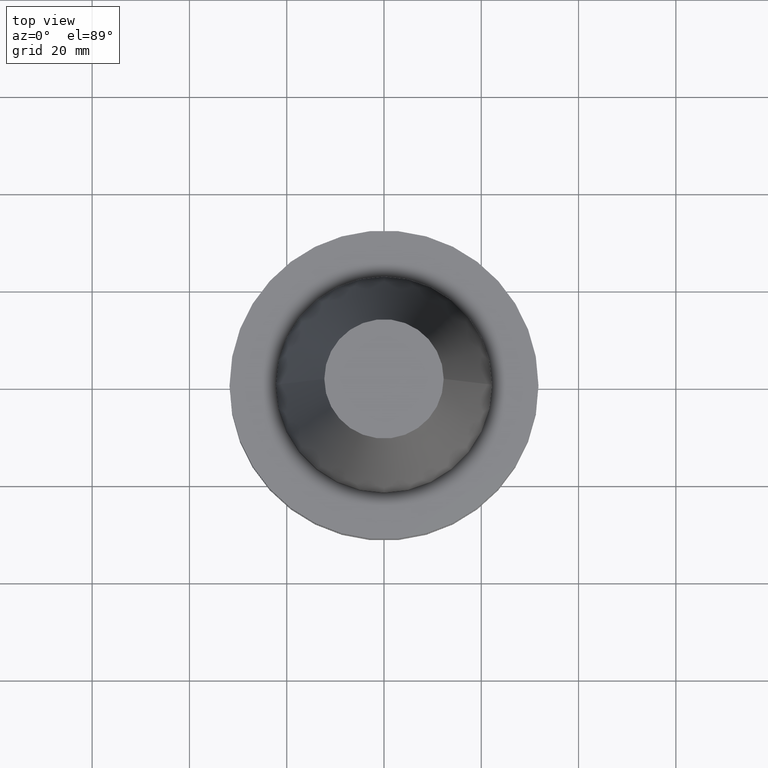
[diagram: clean part render]
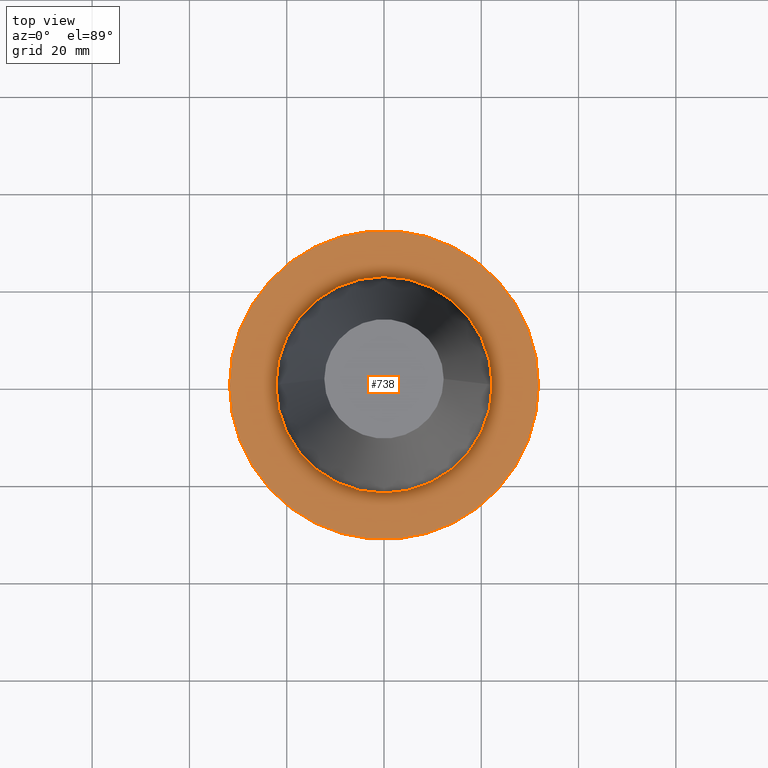
[diagram: same view with one face highlighted and labeled with its STEP entity id]
A machine part, top view. The second image highlights one B-rep face of the part: STEP entity #738.
In plain terms, the highlighted planar face has unit normal (0, 0, -1).
Its self-contained STEP definition (entity closure, byte-faithful):
#24 = CARTESIAN_POINT ( 'NONE',  ( 0.000000000000000000, 0.000000000000000000, -3.174999999999997158 ) ) ;
#38 = DIRECTION ( 'NONE',  ( -0.000000000000000000, -0.000000000000000000, 1.000000000000000000 ) ) ;
#81 = EDGE_CURVE ( 'NONE', #578, #296, #725, .T. ) ;
#86 = EDGE_LOOP ( 'NONE', ( #179, #551 ) ) ;
#105 = AXIS2_PLACEMENT_3D ( 'NONE', #648, #280, #399 ) ;
#113 = FACE_OUTER_BOUND ( 'NONE', #86, .T. ) ;
#179 = ORIENTED_EDGE ( 'NONE', *, *, #514, .T. ) ;
#212 = DIRECTION ( 'NONE',  ( -0.000000000000000000, -0.000000000000000000, 1.000000000000000000 ) ) ;
#223 = CARTESIAN_POINT ( 'NONE',  ( 0.000000000000000000, 0.000000000000000000, -3.174999999999997158 ) ) ;
#226 = DIRECTION ( 'NONE',  ( -0.000000000000000000, -0.000000000000000000, 1.000000000000000000 ) ) ;
#229 = AXIS2_PLACEMENT_3D ( 'NONE', #258, #377, #561 ) ;
#236 = EDGE_LOOP ( 'NONE', ( #390, #650 ) ) ;
#254 = EDGE_CURVE ( 'NONE', #296, #578, #445, .T. ) ;
#258 = CARTESIAN_POINT ( 'NONE',  ( 0.000000000000000000, 0.000000000000000000, -3.174999999999997158 ) ) ;
#265 = CARTESIAN_POINT ( 'NONE',  ( -31.75000000000000000, 3.888253587292846476E-15, -3.174999999999997158 ) ) ;
#277 = CARTESIAN_POINT ( 'NONE',  ( 0.000000000000000000, 0.000000000000000000, -3.174999999999997158 ) ) ;
#280 = DIRECTION ( 'NONE',  ( 0.000000000000000000, 0.000000000000000000, -1.000000000000000000 ) ) ;
#296 = VERTEX_POINT ( 'NONE', #526 ) ;
#324 = CARTESIAN_POINT ( 'NONE',  ( 31.75000000000000000, 0.000000000000000000, -3.174999999999997158 ) ) ;
#337 = EDGE_CURVE ( 'NONE', #451, #438, #628, .T. ) ;
#377 = DIRECTION ( 'NONE',  ( -0.000000000000000000, -0.000000000000000000, 1.000000000000000000 ) ) ;
#390 = ORIENTED_EDGE ( 'NONE', *, *, #81, .F. ) ;
#391 = AXIS2_PLACEMENT_3D ( 'NONE', #277, #38, #462 ) ;
#399 = DIRECTION ( 'NONE',  ( -1.000000000000000000, 0.000000000000000000, -0.000000000000000000 ) ) ;
#438 = VERTEX_POINT ( 'NONE', #324 ) ;
#445 = CIRCLE ( 'NONE', #594, 22.22500000000000142 ) ;
#451 = VERTEX_POINT ( 'NONE', #265 ) ;
#462 = DIRECTION ( 'NONE',  ( 1.000000000000000000, 0.000000000000000000, 0.000000000000000000 ) ) ;
#467 = DIRECTION ( 'NONE',  ( 1.000000000000000000, 0.000000000000000000, 0.000000000000000000 ) ) ;
#514 = EDGE_CURVE ( 'NONE', #438, #451, #677, .T. ) ;
#516 = DIRECTION ( 'NONE',  ( 1.000000000000000000, 0.000000000000000000, 0.000000000000000000 ) ) ;
#526 = CARTESIAN_POINT ( 'NONE',  ( -22.22500000000000142, 2.721777511104992849E-15, -3.174999999999997158 ) ) ;
#551 = ORIENTED_EDGE ( 'NONE', *, *, #337, .T. ) ;
#561 = DIRECTION ( 'NONE',  ( 1.000000000000000000, 0.000000000000000000, 0.000000000000000000 ) ) ;
#578 = VERTEX_POINT ( 'NONE', #626 ) ;
#594 = AXIS2_PLACEMENT_3D ( 'NONE', #223, #226, #467 ) ;
#626 = CARTESIAN_POINT ( 'NONE',  ( 22.22500000000000142, 0.000000000000000000, -3.174999999999997158 ) ) ;
#628 = CIRCLE ( 'NONE', #229, 31.75000000000000000 ) ;
#648 = CARTESIAN_POINT ( 'NONE',  ( 0.000000000000000000, 31.75000000000000000, -3.174999999999993605 ) ) ;
#650 = ORIENTED_EDGE ( 'NONE', *, *, #254, .F. ) ;
#653 = AXIS2_PLACEMENT_3D ( 'NONE', #24, #212, #516 ) ;
#677 = CIRCLE ( 'NONE', #653, 31.75000000000000000 ) ;
#693 = PLANE ( 'NONE',  #105 ) ;
#725 = CIRCLE ( 'NONE', #391, 22.22500000000000142 ) ;
#738 = ADVANCED_FACE ( 'NONE', ( #757, #113 ), #693, .F. ) ;
#757 = FACE_BOUND ( 'NONE', #236, .T. ) ;